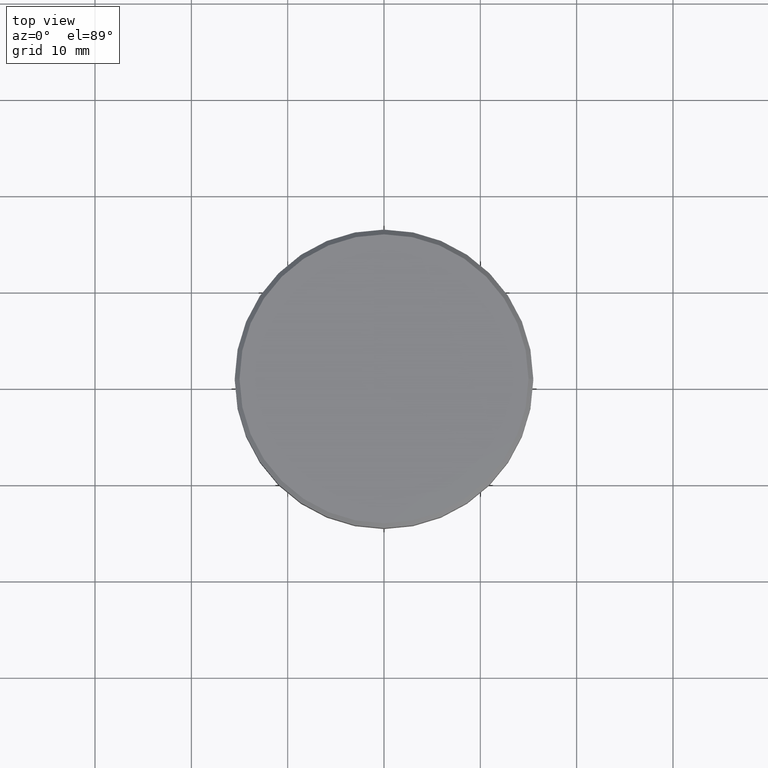
[diagram: clean part render]
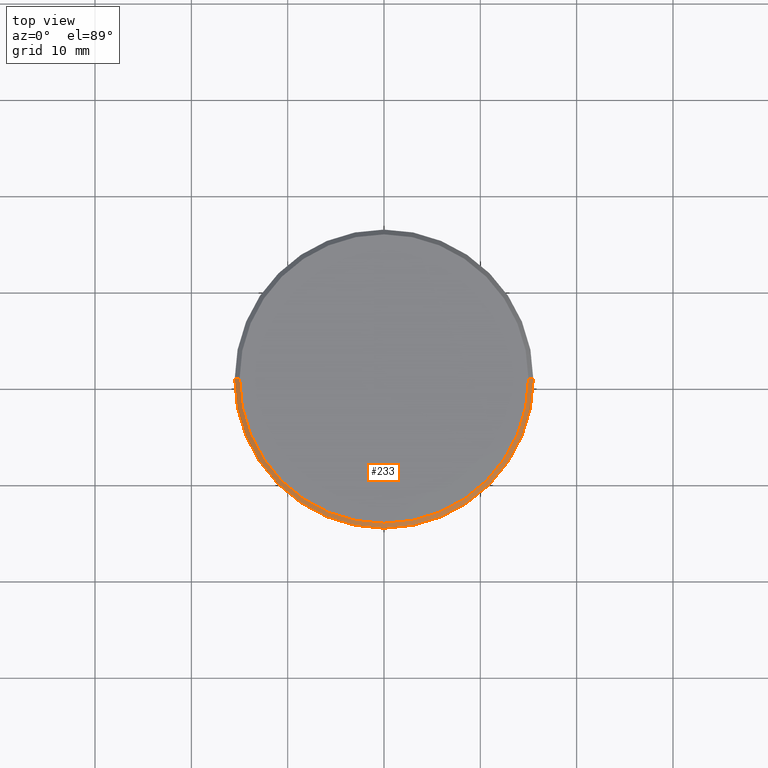
[diagram: same view with one face highlighted and labeled with its STEP entity id]
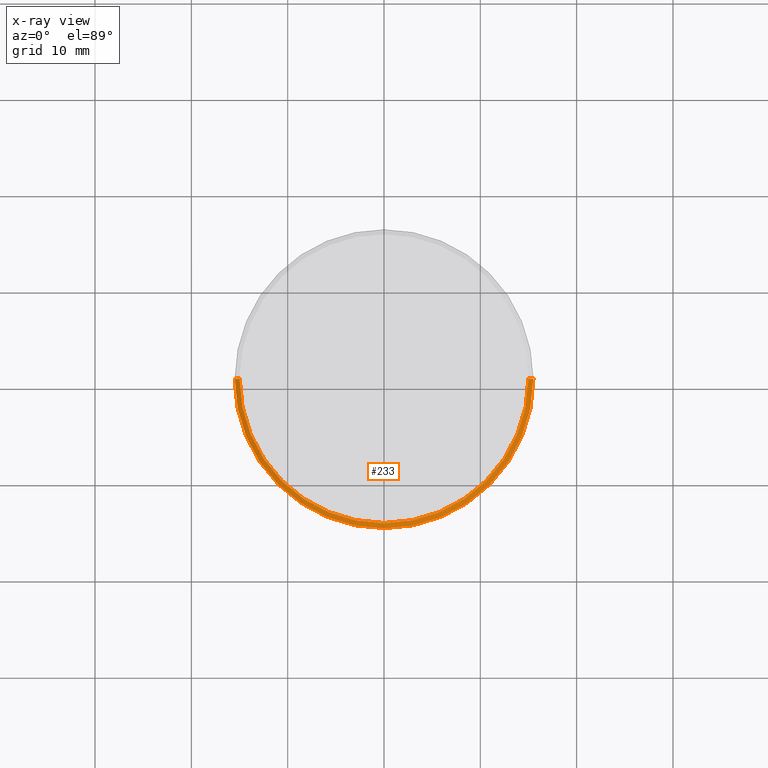
[diagram: x-ray of the same camera — body ghosted, the highlighted face saturated]
A machine part, top view. The second image highlights one B-rep face of the part: STEP entity #233.
The next image is the same camera in x-ray: the body ghosted, the highlighted face saturated — about 0% of this face is hidden behind the body in this view.
In plain terms, the highlighted conical surface has half-angle 45 deg.
Its self-contained STEP definition (entity closure, byte-faithful):
#36 = DIRECTION ( 'NONE',  ( 1.000000000000000000, 0.000000000000000000, 0.000000000000000000 ) ) ;
#94 = CARTESIAN_POINT ( 'NONE',  ( 0.000000000000000000, 0.000000000000000000, 0.000000000000000000 ) ) ;
#99 = AXIS2_PLACEMENT_3D ( 'NONE', #218, #768, #36 ) ;
#106 = ORIENTED_EDGE ( 'NONE', *, *, #284, .T. ) ;
#143 = LINE ( 'NONE', #1135, #673 ) ;
#160 = ORIENTED_EDGE ( 'NONE', *, *, #388, .F. ) ;
#218 = CARTESIAN_POINT ( 'NONE',  ( 0.000000000000000000, 0.000000000000000000, -0.5000000000000196509 ) ) ;
#230 = AXIS2_PLACEMENT_3D ( 'NONE', #94, #835, #645 ) ;
#233 = ADVANCED_FACE ( 'NONE', ( #924 ), #633, .T. ) ;
#243 = CARTESIAN_POINT ( 'NONE',  ( 14.99999999999998579, 1.867586368699712587E-15, 0.000000000000000000 ) ) ;
#266 = EDGE_CURVE ( 'NONE', #348, #714, #512, .T. ) ;
#284 = EDGE_CURVE ( 'NONE', #781, #714, #143, .T. ) ;
#327 = ORIENTED_EDGE ( 'NONE', *, *, #266, .F. ) ;
#348 = VERTEX_POINT ( 'NONE', #876 ) ;
#371 = EDGE_CURVE ( 'NONE', #781, #777, #961, .T. ) ;
#388 = EDGE_CURVE ( 'NONE', #777, #348, #581, .T. ) ;
#412 = CARTESIAN_POINT ( 'NONE',  ( -14.99999999999998579, 0.000000000000000000, 0.000000000000000000 ) ) ;
#476 = VECTOR ( 'NONE', #639, 1000.000000000000000 ) ;
#496 = DIRECTION ( 'NONE',  ( -0.7071067811865439090, 0.000000000000000000, -0.7071067811865512365 ) ) ;
#512 = CIRCLE ( 'NONE', #99, 15.50000000000000000 ) ;
#581 = LINE ( 'NONE', #992, #476 ) ;
#594 = DIRECTION ( 'NONE',  ( 1.000000000000000000, 0.000000000000000000, 0.000000000000000000 ) ) ;
#633 = CONICAL_SURFACE ( 'NONE', #230, 14.99999999999998579, 0.7853981633974430610 ) ;
#639 = DIRECTION ( 'NONE',  ( 0.7071067811865439090, 8.659560562354888485E-17, -0.7071067811865512365 ) ) ;
#645 = DIRECTION ( 'NONE',  ( -1.000000000000000000, 0.000000000000000000, 0.000000000000000000 ) ) ;
#671 = CARTESIAN_POINT ( 'NONE',  ( 0.000000000000000000, 0.000000000000000000, 0.000000000000000000 ) ) ;
#673 = VECTOR ( 'NONE', #496, 1000.000000000000000 ) ;
#705 = ORIENTED_EDGE ( 'NONE', *, *, #371, .F. ) ;
#714 = VERTEX_POINT ( 'NONE', #974 ) ;
#768 = DIRECTION ( 'NONE',  ( 0.000000000000000000, 0.000000000000000000, -1.000000000000000000 ) ) ;
#777 = VERTEX_POINT ( 'NONE', #243 ) ;
#781 = VERTEX_POINT ( 'NONE', #412 ) ;
#835 = DIRECTION ( 'NONE',  ( 0.000000000000000000, 0.000000000000000000, -1.000000000000000000 ) ) ;
#876 = CARTESIAN_POINT ( 'NONE',  ( 15.50000000000000000, 0.000000000000000000, -0.5000000000000196509 ) ) ;
#895 = EDGE_LOOP ( 'NONE', ( #160, #705, #106, #327 ) ) ;
#924 = FACE_OUTER_BOUND ( 'NONE', #895, .T. ) ;
#961 = CIRCLE ( 'NONE', #1122, 14.99999999999998579 ) ;
#974 = CARTESIAN_POINT ( 'NONE',  ( -15.50000000000000000, 1.898202538678397557E-15, -0.5000000000000196509 ) ) ;
#992 = CARTESIAN_POINT ( 'NONE',  ( 14.99999999999998579, 1.836970198721027617E-15, 0.000000000000000000 ) ) ;
#1122 = AXIS2_PLACEMENT_3D ( 'NONE', #671, #1124, #594 ) ;
#1124 = DIRECTION ( 'NONE',  ( -0.000000000000000000, -0.000000000000000000, 1.000000000000000000 ) ) ;
#1135 = CARTESIAN_POINT ( 'NONE',  ( -14.99999999999998579, 0.000000000000000000, 0.000000000000000000 ) ) ;